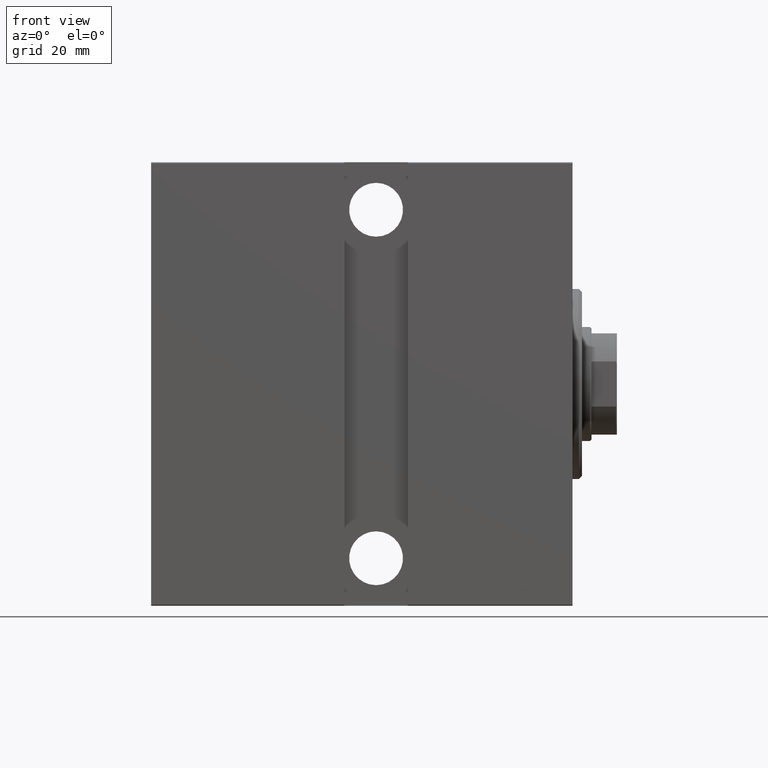
[diagram: clean part render]
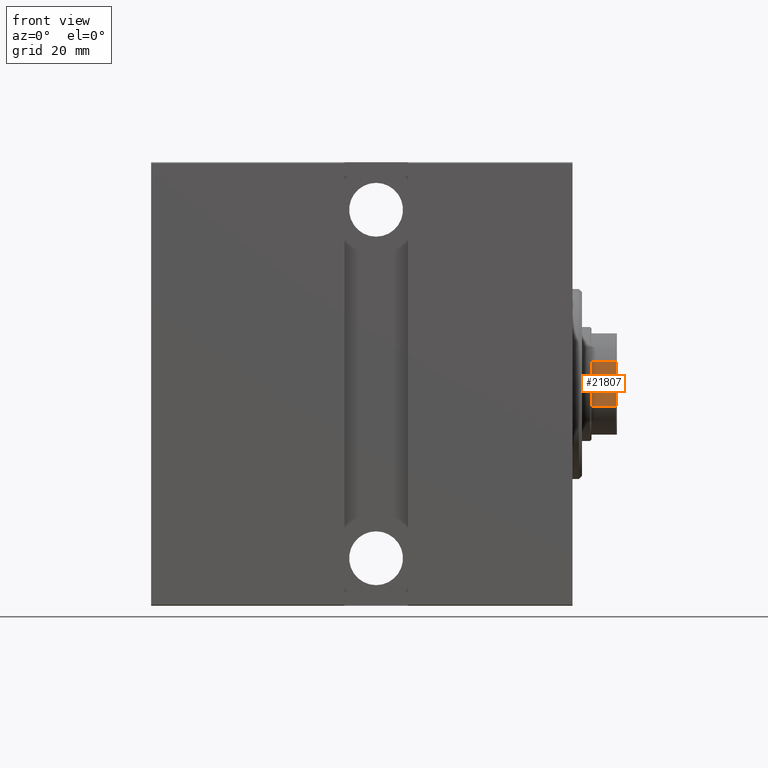
[diagram: same view with one face highlighted and labeled with its STEP entity id]
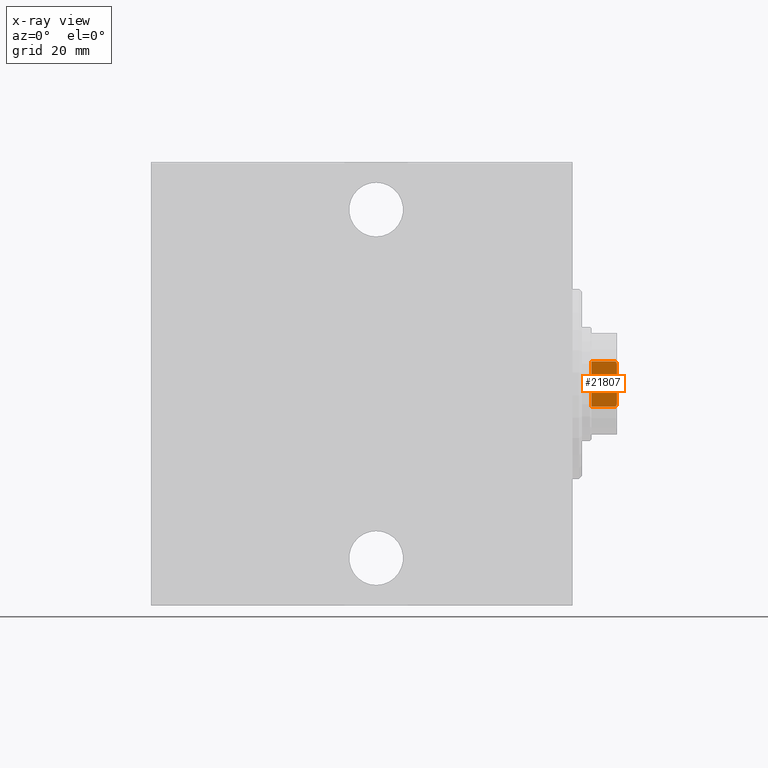
[diagram: x-ray of the same camera — body ghosted, the highlighted face saturated]
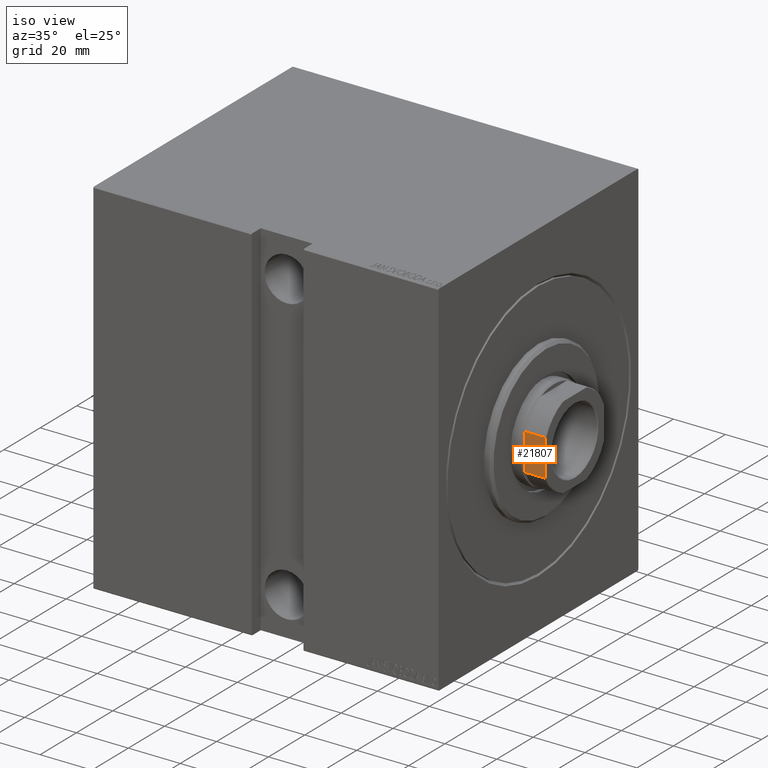
[diagram: same view with one face highlighted and labeled with its STEP entity id]
A machine part, front view. The second image highlights one B-rep face of the part: STEP entity #21807.
The next image is the same camera in x-ray: the body ghosted, the highlighted face saturated — about 0% of this face is hidden behind the body in this view.
A second angle (iso view) of the same face is appended — the face is thin or edge-on in the first view.
In plain terms, the highlighted planar face has unit normal (0, 1, 0).
Its self-contained STEP definition (entity closure, byte-faithful):
#510 = CARTESIAN_POINT ( 'NONE',  ( -6.311893535223810581, -16.00000000000000000, 126.0000000000000000 ) ) ;
#723 = CARTESIAN_POINT ( 'NONE',  ( -6.572519770966289698, -16.00000000000000000, 125.9043578457852988 ) ) ;
#934 = CARTESIAN_POINT ( 'NONE',  ( -7.088723439378916247, -16.00000000000000000, 125.6999999999999744 ) ) ;
#1147 = DIRECTION ( 'NONE',  ( -0.000000000000000000, -0.000000000000000000, 1.000000000000000000 ) ) ;
#1289 = CARTESIAN_POINT ( 'NONE',  ( -6.311893535223810581, -16.00000000000000000, 126.0000000000000000 ) ) ;
#1532 = CARTESIAN_POINT ( 'NONE',  ( -7.088723439378916247, -16.00000000000000000, 125.6999999999999744 ) ) ;
#2159 = AXIS2_PLACEMENT_3D ( 'NONE', #36825, #4332, #30318 ) ;
#2449 = VERTEX_POINT ( 'NONE', #3881 ) ;
#3881 = CARTESIAN_POINT ( 'NONE',  ( -7.088723439378916247, -16.00000000000000000, 118.0000000000000284 ) ) ;
#4332 = DIRECTION ( 'NONE',  ( 0.000000000000000000, 1.000000000000000000, 0.000000000000000000 ) ) ;
#5284 = B_SPLINE_CURVE_WITH_KNOTS ( 'NONE', 3,
 ( #510, #723, #23687, #934 ),
 .UNSPECIFIED., .F., .F.,
 ( 4, 4 ),
 ( 0.000000000000000000, 0.0008327452791758370399 ),
 .UNSPECIFIED. ) ;
#6925 = B_SPLINE_CURVE_WITH_KNOTS ( 'NONE', 3,
 ( #16386, #9264, #16604, #19214 ),
 .UNSPECIFIED., .F., .F.,
 ( 4, 4 ),
 ( 0.000000000000000000, 0.0008327452791758102602 ),
 .UNSPECIFIED. ) ;
#7347 = EDGE_CURVE ( 'NONE', #21771, #10766, #14445, .T. ) ;
#7825 = LINE ( 'NONE', #40968, #30392 ) ;
#8210 = ORIENTED_EDGE ( 'NONE', *, *, #27294, .F. ) ;
#9264 = CARTESIAN_POINT ( 'NONE',  ( 6.831413176973285317, -16.00000000000000000, 125.8042286450461518 ) ) ;
#10766 = VERTEX_POINT ( 'NONE', #20530 ) ;
#11304 = DIRECTION ( 'NONE',  ( 1.000000000000000000, 0.000000000000000000, 0.000000000000000000 ) ) ;
#12178 = EDGE_LOOP ( 'NONE', ( #23608, #14400, #25196, #27806, #8210, #24520 ) ) ;
#12180 = CARTESIAN_POINT ( 'NONE',  ( 7.088723439378916247, -16.00000000000000000, 118.0000000000000284 ) ) ;
#12591 = EDGE_CURVE ( 'NONE', #2449, #34038, #7825, .T. ) ;
#13658 = DIRECTION ( 'NONE',  ( -0.000000000000000000, -0.000000000000000000, 1.000000000000000000 ) ) ;
#14078 = PLANE ( 'NONE',  #2159 ) ;
#14344 = VECTOR ( 'NONE', #36405, 1000.000000000000000 ) ;
#14400 = ORIENTED_EDGE ( 'NONE', *, *, #17007, .T. ) ;
#14445 = LINE ( 'NONE', #36617, #14344 ) ;
#15177 = EDGE_CURVE ( 'NONE', #21771, #23653, #5284, .T. ) ;
#16382 = EDGE_CURVE ( 'NONE', #34038, #23509, #30825, .T. ) ;
#16386 = CARTESIAN_POINT ( 'NONE',  ( 7.088723439378916247, -16.00000000000000000, 125.6999999999999744 ) ) ;
#16604 = CARTESIAN_POINT ( 'NONE',  ( 6.572519770966306574, -16.00000000000000000, 125.9043578457852988 ) ) ;
#17007 = EDGE_CURVE ( 'NONE', #23509, #10766, #6925, .T. ) ;
#19214 = CARTESIAN_POINT ( 'NONE',  ( 6.311893535223840779, -16.00000000000000000, 126.0000000000000000 ) ) ;
#19516 = LINE ( 'NONE', #26863, #29951 ) ;
#20530 = CARTESIAN_POINT ( 'NONE',  ( 6.311893535223840779, -16.00000000000000000, 126.0000000000000000 ) ) ;
#21771 = VERTEX_POINT ( 'NONE', #1289 ) ;
#21807 = ADVANCED_FACE ( 'NONE', ( #30538 ), #14078, .F. ) ;
#23509 = VERTEX_POINT ( 'NONE', #42699 ) ;
#23608 = ORIENTED_EDGE ( 'NONE', *, *, #16382, .T. ) ;
#23653 = VERTEX_POINT ( 'NONE', #1532 ) ;
#23687 = CARTESIAN_POINT ( 'NONE',  ( -6.831413176973271995, -16.00000000000000000, 125.8042286450461518 ) ) ;
#24520 = ORIENTED_EDGE ( 'NONE', *, *, #12591, .T. ) ;
#25196 = ORIENTED_EDGE ( 'NONE', *, *, #7347, .F. ) ;
#26863 = CARTESIAN_POINT ( 'NONE',  ( -7.088723439378916247, -16.00000000000000000, -0.001000000000001000089 ) ) ;
#27294 = EDGE_CURVE ( 'NONE', #2449, #23653, #19516, .T. ) ;
#27806 = ORIENTED_EDGE ( 'NONE', *, *, #15177, .T. ) ;
#29951 = VECTOR ( 'NONE', #13658, 1000.000000000000000 ) ;
#30318 = DIRECTION ( 'NONE',  ( 0.000000000000000000, -0.000000000000000000, 1.000000000000000000 ) ) ;
#30392 = VECTOR ( 'NONE', #11304, 1000.000000000000000 ) ;
#30538 = FACE_OUTER_BOUND ( 'NONE', #12178, .T. ) ;
#30825 = LINE ( 'NONE', #31262, #41559 ) ;
#31262 = CARTESIAN_POINT ( 'NONE',  ( 7.088723439378916247, -16.00000000000000000, -0.001000000000001000089 ) ) ;
#34038 = VERTEX_POINT ( 'NONE', #12180 ) ;
#36405 = DIRECTION ( 'NONE',  ( 1.000000000000000000, 0.000000000000000000, 0.000000000000000000 ) ) ;
#36617 = CARTESIAN_POINT ( 'NONE',  ( -15.99999999999999289, -16.00000000000000000, 126.0000000000000000 ) ) ;
#36825 = CARTESIAN_POINT ( 'NONE',  ( -15.99999999999999289, -16.00000000000000000, 126.0000000000000000 ) ) ;
#40968 = CARTESIAN_POINT ( 'NONE',  ( -15.99999999999999289, -16.00000000000000000, 118.0000000000000000 ) ) ;
#41559 = VECTOR ( 'NONE', #1147, 1000.000000000000000 ) ;
#42699 = CARTESIAN_POINT ( 'NONE',  ( 7.088723439378916247, -16.00000000000000000, 125.6999999999999744 ) ) ;